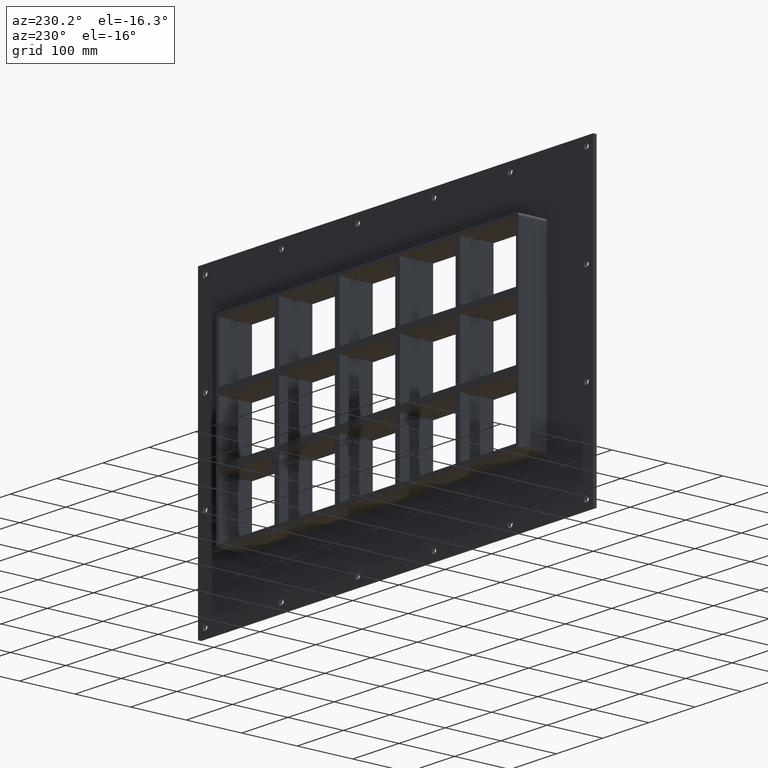
[diagram: clean part render]
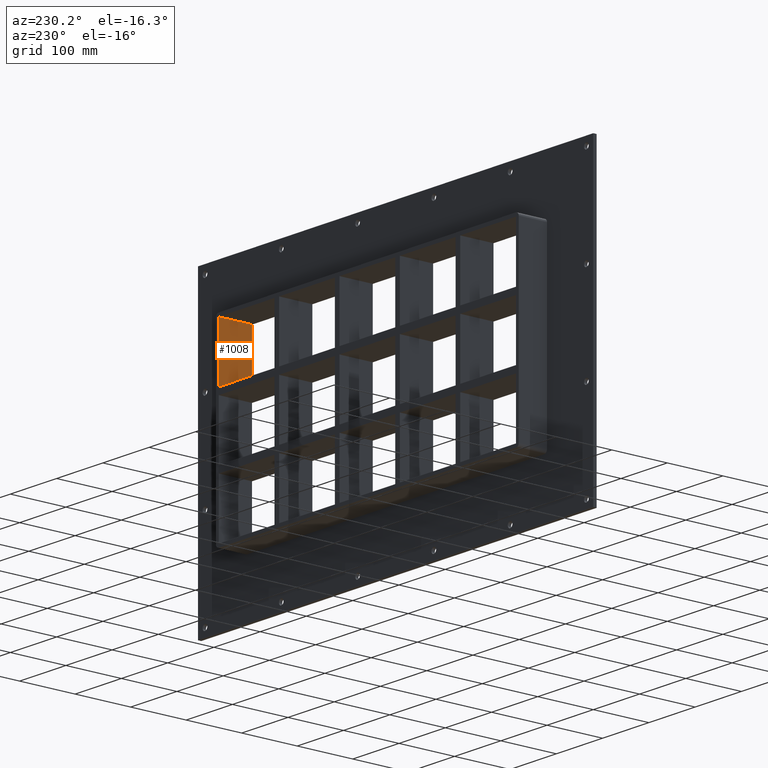
[diagram: same view with one face highlighted and labeled with its STEP entity id]
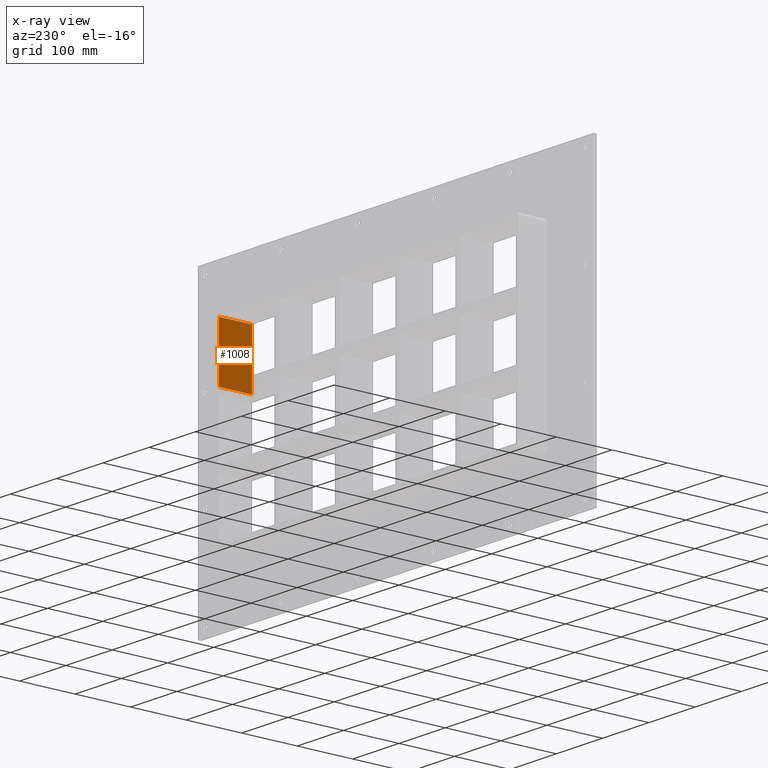
[diagram: x-ray of the same camera — body ghosted, the highlighted face saturated]
A machine part, auxiliary view. The second image highlights one B-rep face of the part: STEP entity #1008.
The next image is the same camera in x-ray: the body ghosted, the highlighted face saturated — about 0% of this face is hidden behind the body in this view.
In plain terms, the highlighted planar face has unit normal (1, 0, 0).
Its self-contained STEP definition (entity closure, byte-faithful):
#771=CARTESIAN_POINT('',(321.25000000000006,-3.0,62.499999999999893));
#772=VERTEX_POINT('',#771);
#779=CARTESIAN_POINT('',(321.25000000000011,57.0,62.499999999999893));
#780=VERTEX_POINT('',#779);
#781=CARTESIAN_POINT('',(321.25000000000011,57.000000000000007,62.499999999999893));
#782=DIRECTION('',(0.0,-1.0,0.0));
#783=VECTOR('',#782,60.000000000000007);
#784=LINE('',#781,#783);
#785=EDGE_CURVE('',#780,#772,#784,.T.);
#978=CARTESIAN_POINT('',(321.25000000000011,0.0,163.5));
#979=DIRECTION('',(1.0,0.0,0.0));
#980=DIRECTION('',(0.0,0.0,-1.0));
#981=AXIS2_PLACEMENT_3D('',#978,#979,#980);
#982=PLANE('',#981);
#983=ORIENTED_EDGE('',*,*,#785,.T.);
#984=CARTESIAN_POINT('',(321.25000000000011,-3.0,163.5));
#985=VERTEX_POINT('',#984);
#986=CARTESIAN_POINT('',(321.25000000000011,-3.0,163.5));
#987=DIRECTION('',(0.0,0.0,-1.0));
#988=VECTOR('',#987,101.00000000000011);
#989=LINE('',#986,#988);
#990=EDGE_CURVE('',#985,#772,#989,.T.);
#991=ORIENTED_EDGE('',*,*,#990,.F.);
#992=CARTESIAN_POINT('',(321.25000000000011,57.0,163.5));
#993=VERTEX_POINT('',#992);
#994=CARTESIAN_POINT('',(321.25000000000011,-3.0,163.5));
#995=DIRECTION('',(0.0,1.0,0.0));
#996=VECTOR('',#995,60.0);
#997=LINE('',#994,#996);
#998=EDGE_CURVE('',#985,#993,#997,.T.);
#999=ORIENTED_EDGE('',*,*,#998,.T.);
#1000=CARTESIAN_POINT('',(321.25000000000011,57.0,62.499999999999886));
#1001=DIRECTION('',(0.0,0.0,1.0));
#1002=VECTOR('',#1001,101.00000000000011);
#1003=LINE('',#1000,#1002);
#1004=EDGE_CURVE('',#780,#993,#1003,.T.);
#1005=ORIENTED_EDGE('',*,*,#1004,.F.);
#1006=EDGE_LOOP('',(#983,#991,#999,#1005));
#1007=FACE_OUTER_BOUND('',#1006,.T.);
#1008=ADVANCED_FACE('',(#1007),#982,.F.);